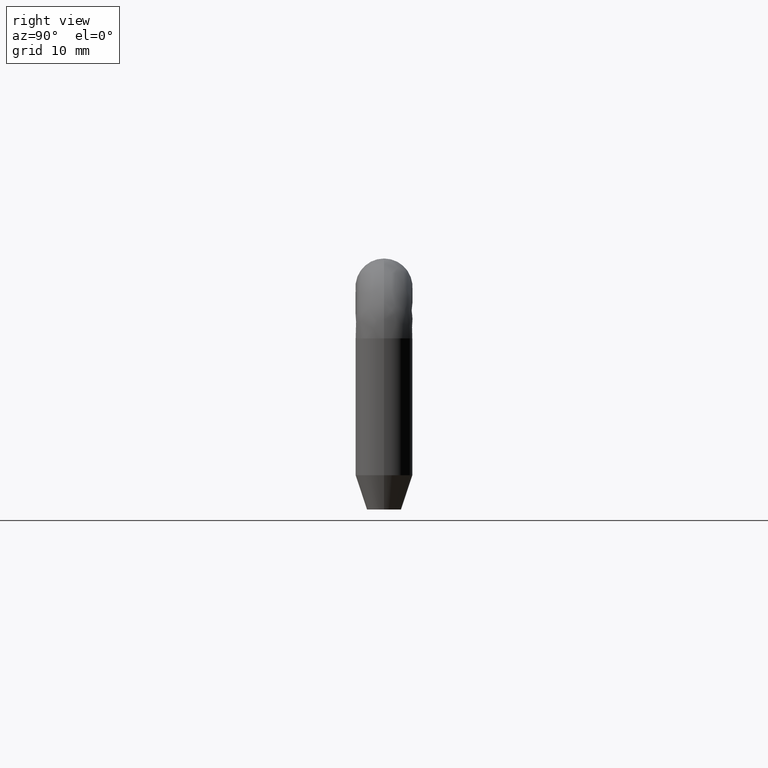
[diagram: clean part render]
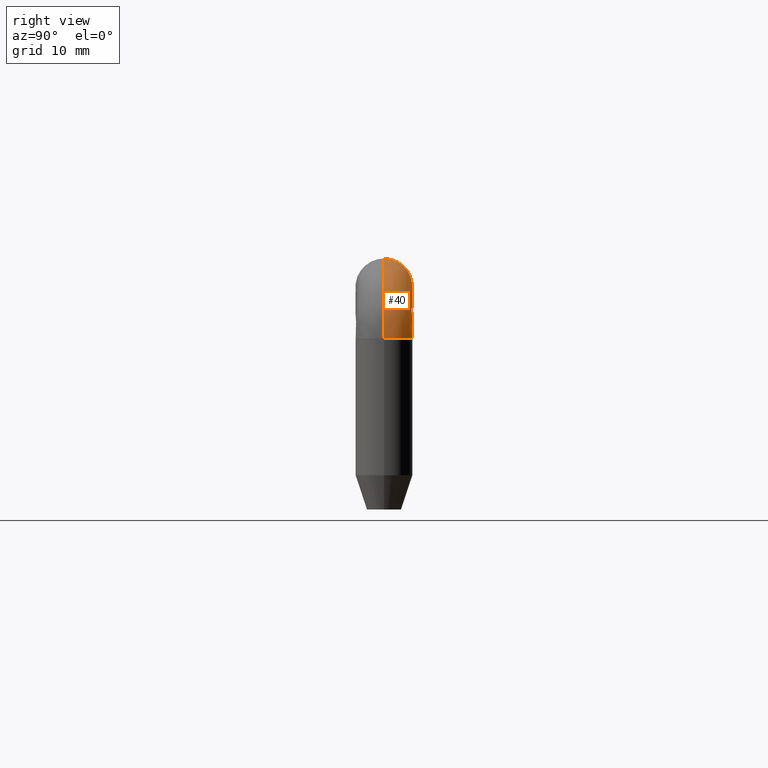
[diagram: same view with one face highlighted and labeled with its STEP entity id]
A machine part, right view. The second image highlights one B-rep face of the part: STEP entity #40.
In plain terms, the highlighted face is a freeform B-spline surface patch.
Its self-contained STEP definition (entity closure, byte-faithful):
#40=ADVANCED_FACE('',(#65),#64,.T.);
#64=( BOUNDED_SURFACE() B_SPLINE_SURFACE( 3,3,((#308,#309,#310,#311,#312),(#313,#314,#315,#316,#317),(#318,#319,#320,#321,#322),(#323,#324,#325,#326,#327),(#328,#329,#330,#331,#332),(#333,#334,#335,#336,#337),(#338,#339,#340,#341,#342)), .UNSPECIFIED.,.F.,.F.,.F.) B_SPLINE_SURFACE_WITH_KNOTS((4,1,1,1,4),(4,1,4),(0.00000000000E+00,2.50000000000E-01,5.00000000000E-01,7.50000000000E-01,1.00000000000E+00),(0.00000000000E+00,5.00000000000E-01,1.00000000000E+00), .UNSPECIFIED. ) GEOMETRIC_REPRESENTATION_ITEM() RATIONAL_B_SPLINE_SURFACE(((1.00000000000E+00,1.00000000000E+00,1.00000000000E+00,1.00000000000E+00,1.00000000000E+00),(1.00000000000E+00,1.00000000000E+00,1.00000000000E+00,1.00000000000E+00,1.00000000000E+00),(1.00000000000E+00,1.00000000000E+00,1.00000000000E+00,1.00000000000E+00,1.00000000000E+00),(1.00000000000E+00,1.00000000000E+00,1.00000000000E+00,1.00000000000E+00,1.00000000000E+00),(1.00000000000E+00,1.00000000000E+00,1.00000000000E+00,1.00000000000E+00,1.00000000000E+00),(1.00000000000E+00,1.00000000000E+00,1.00000000000E+00,1.00000000000E+00,1.00000000000E+00),(1.00000000000E+00,1.00000000000E+00,1.00000000000E+00,1.00000000000E+00,1.00000000000E+00))) REPRESENTATION_ITEM('') SURFACE() );
#65=FACE_OUTER_BOUND('',#343,.T.);
#308=CARTESIAN_POINT('',(6.00000000001E+01,-3.66468367298E-14,-4.49999999981E+00));
#309=CARTESIAN_POINT('',(6.00128395430E+01,-2.63084948545E-14,-2.66216051490E+00));
#310=CARTESIAN_POINT('',(5.84731038834E+01,-5.42652553800E-16,9.87577952775E-01));
#311=CARTESIAN_POINT('',(5.48193115676E+01,2.03207503592E-14,2.51766915473E+00));
#312=CARTESIAN_POINT('',(5.29815123345E+01,2.63675101311E-14,2.49997558612E+00));
#313=CARTESIAN_POINT('',(6.00000000001E+01,6.54498527056E-01,-4.49999999981E+00));
#314=CARTESIAN_POINT('',(6.00128395430E+01,6.54498527056E-01,-2.66216051490E+00));
#315=CARTESIAN_POINT('',(5.84731038834E+01,6.54498527056E-01,9.87577952775E-01));
#316=CARTESIAN_POINT('',(5.48193115676E+01,6.54498527056E-01,2.51766915473E+00));
#317=CARTESIAN_POINT('',(5.29815123345E+01,6.54498527056E-01,2.49997558612E+00));
#318=CARTESIAN_POINT('',(5.94590290623E+01,1.95828464241E+00,-4.49999999983E+00));
#319=CARTESIAN_POINT('',(5.94708763453E+01,1.95828464241E+00,-2.80419162201E+00));
#320=CARTESIAN_POINT('',(5.80501338633E+01,1.95828464241E+00,5.63489354029E-01));
#321=CARTESIAN_POINT('',(5.46787123269E+01,1.95828464241E+00,1.97533271707E+00));
#322=CARTESIAN_POINT('',(5.29829410902E+01,1.95828464241E+00,1.95900653509E+00));
#323=CARTESIAN_POINT('',(5.75000000001E+01,2.77085767880E+00,-4.49999999990E+00));
#324=CARTESIAN_POINT('',(5.75082539919E+01,2.77085767880E+00,-3.31853175960E+00));
#325=CARTESIAN_POINT('',(5.65184239251E+01,2.77085767880E+00,-9.72271316078E-01));
#326=CARTESIAN_POINT('',(5.41695574363E+01,2.77085767880E+00,1.13587423256E-02));
#327=CARTESIAN_POINT('',(5.29881150722E+01,2.77085767880E+00,-1.56946348364E-05));
#328=CARTESIAN_POINT('',(5.55409709378E+01,1.95828464241E+00,-4.49999999997E+00));
#329=CARTESIAN_POINT('',(5.55456316386E+01,1.95828464241E+00,-3.83287189719E+00));
#330=CARTESIAN_POINT('',(5.49867139868E+01,1.95828464241E+00,-2.50803198619E+00));
#331=CARTESIAN_POINT('',(5.36604025457E+01,1.95828464241E+00,-1.95261523242E+00));
#332=CARTESIAN_POINT('',(5.29932890542E+01,1.95828464241E+00,-1.95903792436E+00));
#333=CARTESIAN_POINT('',(5.50000000001E+01,6.54498527056E-01,-4.49999999999E+00));
#334=CARTESIAN_POINT('',(5.50036684409E+01,6.54498527056E-01,-3.97490300429E+00));
#335=CARTESIAN_POINT('',(5.45637439667E+01,6.54498527056E-01,-2.93212058493E+00));
#336=CARTESIAN_POINT('',(5.35198033050E+01,6.54498527056E-01,-2.49495167008E+00));
#337=CARTESIAN_POINT('',(5.29947178099E+01,6.54498527056E-01,-2.50000697539E+00));
#338=CARTESIAN_POINT('',(5.50000000001E+01,-1.96176824939E-14,-4.49999999999E+00));
#339=CARTESIAN_POINT('',(5.50036684409E+01,-1.66638705295E-14,-3.97490300429E+00));
#340=CARTESIAN_POINT('',(5.45637439667E+01,-9.30220130053E-15,-2.93212058493E+00));
#341=CARTESIAN_POINT('',(5.35198033050E+01,-3.34122903952E-15,-2.49495167008E+00));
#342=CARTESIAN_POINT('',(5.29947178099E+01,-1.61358339038E-15,-2.50000697539E+00));
#343=EDGE_LOOP('',(#504,#505,#506,#507));
#504=ORIENTED_EDGE('',*,*,#596,.F.);
#505=ORIENTED_EDGE('',*,*,#597,.T.);
#506=ORIENTED_EDGE('',*,*,#598,.T.);
#507=ORIENTED_EDGE('',*,*,#599,.F.);
#596=EDGE_CURVE('',#642,#643,#644,.T.);
#597=EDGE_CURVE('',#642,#650,#651,.T.);
#598=EDGE_CURVE('',#650,#657,#658,.T.);
#599=EDGE_CURVE('',#643,#657,#664,.T.);
#642=VERTEX_POINT('',#946);
#643=VERTEX_POINT('',#947);
#644=CIRCLE('',#951,2.50000000000E+00);
#650=VERTEX_POINT('',#952);
#651=CIRCLE('',#956,2.00000000007E+00);
#657=VERTEX_POINT('',#957);
#658=CIRCLE('',#961,2.50000000000E+00);
#664=(BOUNDED_CURVE() B_SPLINE_CURVE(3,(#962,#963,#964,#965,#966),.UNSPECIFIED.,.F.,.F.) B_SPLINE_CURVE_WITH_KNOTS((4,1,4),(1.57079632684E+00,2.35619449023E+00,3.14159265361E+00),.UNSPECIFIED.) CURVE() GEOMETRIC_REPRESENTATION_ITEM() RATIONAL_B_SPLINE_CURVE((1.00000000000E+00,1.00000000000E+00,1.00000000000E+00,1.00000000000E+00,1.00000000000E+00)) REPRESENTATION_ITEM('') );
#946=CARTESIAN_POINT('',(5.50000000000E+01,1.48029736617E-16,-4.50000000000E+00));
#947=CARTESIAN_POINT('',(6.00000000000E+01,3.06151588456E-16,-4.50000000000E+00));
#948=CARTESIAN_POINT('',(5.75000000000E+01,1.53080849893E-16,-4.50000000000E+00));
#949=DIRECTION('',(-0.00000000000E+00,0.00000000000E+00,-1.00000000000E+00));
#950=DIRECTION('',(1.00000000000E+00,1.83697019872E-16,-0.00000000000E+00));
#951=AXIS2_PLACEMENT_3D('',#948,#949,#950);
#952=CARTESIAN_POINT('',(5.30000000000E+01,-1.77635683940E-15,-2.50000000000E+00));
#953=CARTESIAN_POINT('',(5.30000000000E+01,-1.35407846116E-14,-4.50000000007E+00));
#954=DIRECTION('',(-3.34460052969E-15,-1.00000000000E+00,5.64863531475E-15));
#955=DIRECTION('',(-1.00000000000E+00,3.34460052969E-15,-1.86517468131E-14));
#956=AXIS2_PLACEMENT_3D('',#953,#954,#955);
#957=CARTESIAN_POINT('',(5.30000000000E+01,3.06151588456E-16,2.50000000000E+00));
#958=CARTESIAN_POINT('',(5.30000000000E+01,1.30876389401E-16,-2.16222573071E-31));
#959=DIRECTION('',(1.00000000000E+00,-2.00971834712E-15,1.24382361928E-30));
#960=DIRECTION('',(-2.46111385727E-31,-7.41365080907E-16,-1.00000000000E+00));
#961=AXIS2_PLACEMENT_3D('',#958,#959,#960);
#962=CARTESIAN_POINT('',(6.00000000001E+01,-3.66468367297E-14,-4.49999999979E+00));
#963=CARTESIAN_POINT('',(6.00155684147E+01,-2.64401204431E-14,-2.68384692158E+00));
#964=CARTESIAN_POINT('',(5.84836341900E+01,-6.00149098924E-16,9.83634190290E-01));
#965=CARTESIAN_POINT('',(5.48161530780E+01,2.03194479311E-14,2.51556841478E+00));
#966=CARTESIAN_POINT('',(5.29999999999E+01,2.63058141809E-14,2.50000000001E+00));